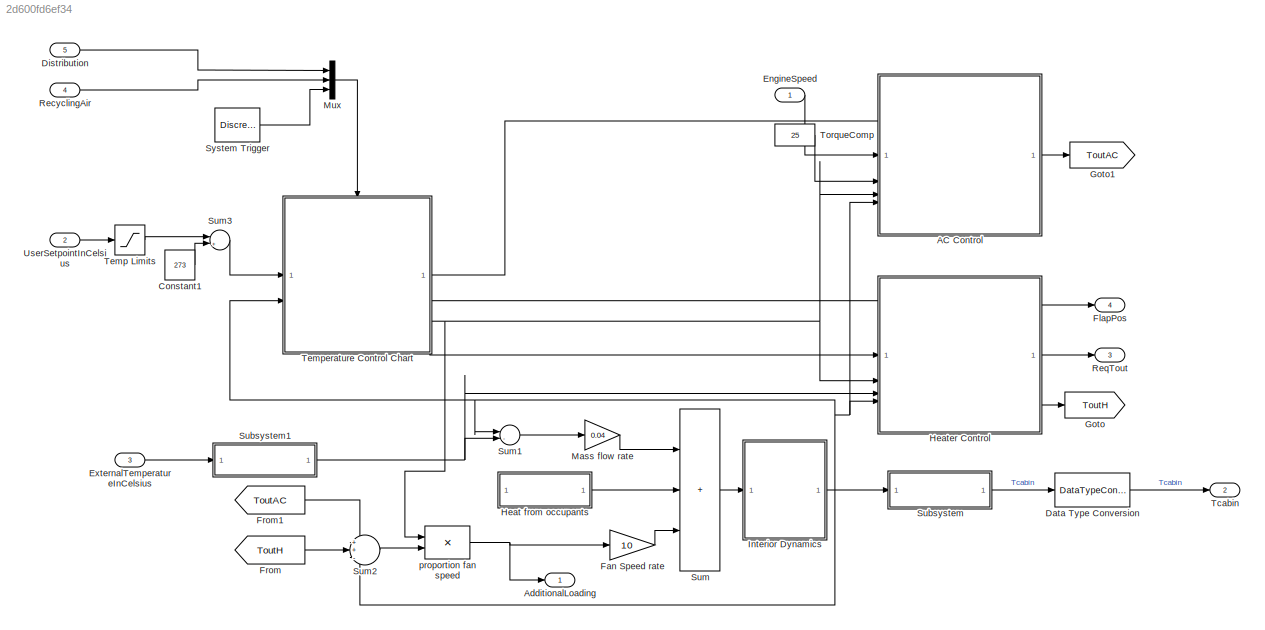
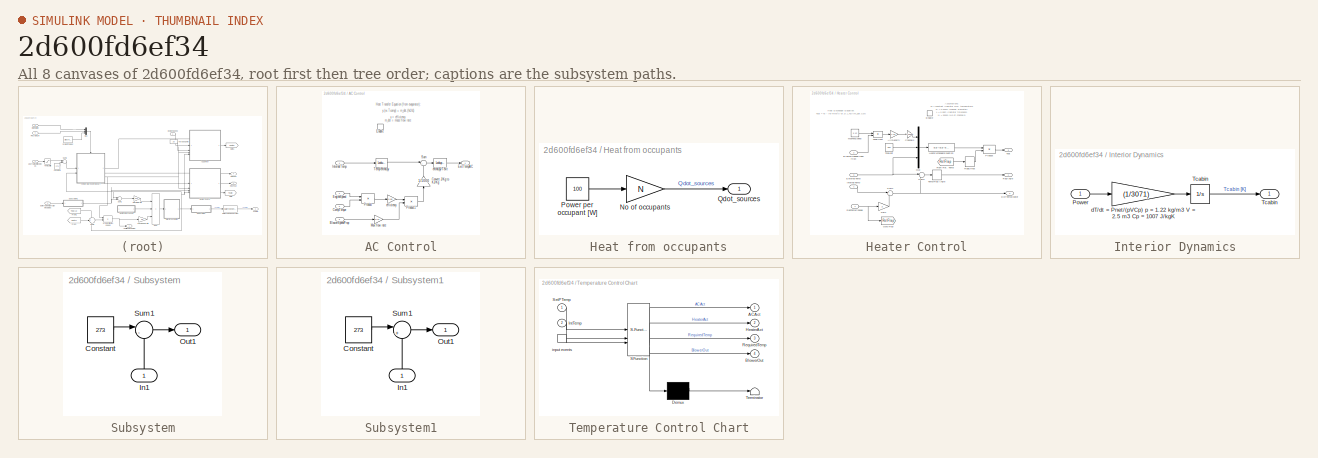
[diagram: thumbnail index - all 8 canvases of the model, root first then tree order]
MODEL slx_2d600fd6ef34
KIND model
CONFIG AbsTol = auto
CONFIG EnableMultiTasking = off
CONFIG FixedStep = auto
CONFIG MaxStep = auto
CONFIG MinStep = auto
CONFIG RelTol = 1e-3
CONFIG SampleTimeConstraint = Unconstrained
CONFIG SolverName = VariableStepAuto
CONFIG StartTime = 0.0
CONFIG StopTime = 10.0
BLOCK [SubSystem] AC Control
  TreatAsAtomicUnit = on
BLOCK [Inport] AC Control/BlowerSpeedProp
  Port = 3
BLOCK [Inport] AC Control/CompTorque
  Port = 2
BLOCK [Gain] AC Control/Convert J//Kg to KJ//Kg
  Gain = 1/1000
  NameLocation = left
BLOCK [EnablePort] AC Control/Enable
  PropagateVarSize = During execution
  StatesWhenEnabling = reset
  ZeroCross = off
BLOCK [Inport] AC Control/EngineSpeed
BLOCK [Outport] AC Control/ExitTempAC
  InitialOutput = 0
  OutputWhenDisabled = reset
  VectorParamsAs1DForOutWhenUnconnected = off
BLOCK [Inport] AC Control/InternalTemp
  Port = 4
BLOCK [Gain] AC Control/Max flow rate
  Gain = 0.12
  OutDataTypeStr = Inherit: Same as input
  ParamDataTypeStr = Inherit: Same as input
  SaturateOnIntegerOverflow = on
BLOCK [Product] AC Control/Product
  InputSameDT = on
  OutDataTypeStr = Inherit: Same as first input
  SaturateOnIntegerOverflow = on
BLOCK [Product] AC Control/Product1
  InputSameDT = on
  Inputs = */
  OutDataTypeStr = Inherit: Same as first input
  SaturateOnIntegerOverflow = on
BLOCK [Sum] AC Control/Sum
  InputSameDT = on
  Inputs = |+-
  OutDataTypeStr = Inherit: Same as first input
  SaturateOnIntegerOverflow = on
BLOCK [Lookup_n-D] AC Control/Temp//enthalpy
  BreakpointsForDimension1 = [220 230 240 250 260 270 280 285 290 295 300 305 310 315 320]
  InputPortMap = u0
  NumberOfTableDimensions = 1
  SaturateOnIntegerOverflow = on
  Table = [219.97 230.02 240.02 250.05 260.09 270.11 280.13 285.14 290.16 295.17 300.19 305.22 310.24 315.27 320.29]
BLOCK [Gain] AC Control/efficiency
  Gain = 0.86
  OutDataTypeStr = Inherit: Same as input
  ParamDataTypeStr = Inherit: Same as input
  SaturateOnIntegerOverflow = on
BLOCK [Lookup_n-D] AC Control/enthalpy//Texit
  BreakpointsForDimension1 = [219.97 230.02 240.02 250.05 260.09 270.11 280.13 285.14 290.16 295.17 300.19 305.22 310.24 315.27 320.29]
  InputPortMap = u0
  NumberOfTableDimensions = 1
  SaturateOnIntegerOverflow = on
  Table = [220 230 240 250 260 270 280 285 290 295 300 305 310 315 320]
BLOCK [Outport] AdditionalLoading
  VectorParamsAs1DForOutWhenUnconnected = off
BLOCK [Constant] Constant1
  Value = 273
BLOCK [DataTypeConversion] Data Type Conversion
  OutDataTypeStr = int16
  RndMeth = Floor
  SaturateOnIntegerOverflow = off
BLOCK [Inport] Distribution
  Port = 5
BLOCK [Inport] EngineSpeed
BLOCK [Inport] ExternalTemperatureInCelsius
  Port = 3
BLOCK [Gain] Fan Speed rate
  Gain = 10
  OutDataTypeStr = Inherit: Same as input
  ParamDataTypeStr = Inherit: Same as input
  SaturateOnIntegerOverflow = on
BLOCK [Outport] FlapPos
  Port = 4
  VectorParamsAs1DForOutWhenUnconnected = off
BLOCK [From] From
  CloseFcn = tagdialog Close
  GotoTag = ToutH
BLOCK [From] From1
  CloseFcn = tagdialog Close
  GotoTag = ToutAC
BLOCK [Goto] Goto
  GotoTag = ToutH
BLOCK [Goto] Goto1
  GotoTag = ToutAC
BLOCK [SubSystem] Heat from occupants
  AttributesFormatString = No. of occupants: %<N>
BLOCK [Gain] Heat from occupants/No of occupants
  Gain = N
  OutDataTypeStr = Inherit: Same as input
  ParamDataTypeStr = Inherit: Same as input
  SaturateOnIntegerOverflow = on
BLOCK [Constant] Heat from occupants/Power per occupant [W]
  Value = 100
BLOCK [Outport] Heat from occupants/Qdot_sources
  VectorParamsAs1DForOutWhenUnconnected = off
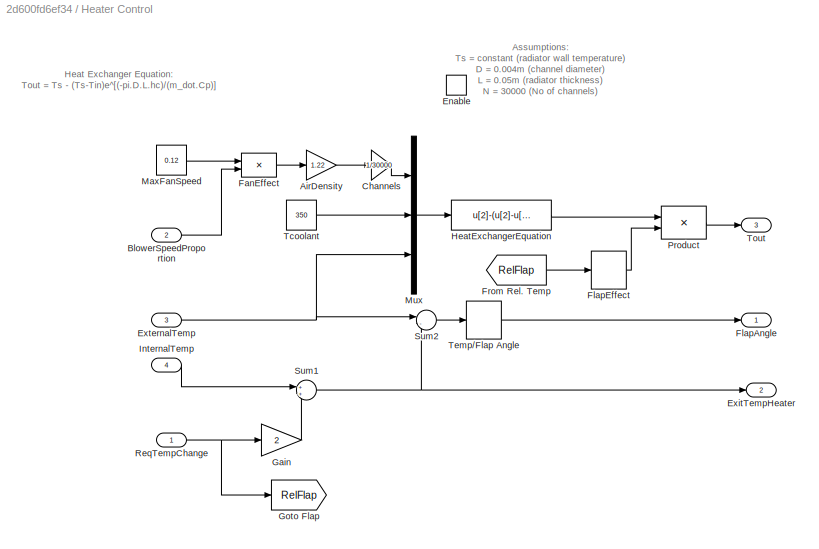
BLOCK [SubSystem] Heater Control
  TreatAsAtomicUnit = on
BLOCK [Gain] Heater Control/AirDensity
  Gain = 1.22
  OutDataTypeStr = Inherit: Same as input
  ParamDataTypeStr = Inherit: Same as input
  SaturateOnIntegerOverflow = on
BLOCK [Inport] Heater Control/BlowerSpeedProportion
  Port = 2
BLOCK [Gain] Heater Control/Channels
  Gain = 1/30000
  OutDataTypeStr = Inherit: Same as input
  ParamDataTypeStr = Inherit: Same as input
  SaturateOnIntegerOverflow = on
BLOCK [EnablePort] Heater Control/Enable
  PropagateVarSize = During execution
  StatesWhenEnabling = reset
  ZeroCross = off
BLOCK [Outport] Heater Control/ExitTempHeater
  InitialOutput = 0
  OutputWhenDisabled = reset
  Port = 2
  VectorParamsAs1DForOutWhenUnconnected = off
BLOCK [Inport] Heater Control/ExternalTemp
  Port = 3
BLOCK [Product] Heater Control/FanEffect
  InputSameDT = on
  OutDataTypeStr = Inherit: Same as first input
  SaturateOnIntegerOverflow = on
BLOCK [Outport] Heater Control/FlapAngle
  InitialOutput = 0
  OutputWhenDisabled = reset
  VectorParamsAs1DForOutWhenUnconnected = off
BLOCK [Lookup_n-D] Heater Control/FlapEffect
  BreakpointsForDimension1 = [0 3 5 10 50  90 100 200 ]
  InputPortMap = u0
  NumberOfTableDimensions = 1
  SaturateOnIntegerOverflow = on
  Table = [0 300 100  10 10  10 3 1]
BLOCK [From] Heater Control/From Rel. Temp
  CloseFcn = tagdialog Close
  GotoTag = RelFlap
BLOCK [Gain] Heater Control/Gain
  Gain = 2
  OutDataTypeStr = Inherit: Same as input
  ParamDataTypeStr = Inherit: Same as input
  SaturateOnIntegerOverflow = on
BLOCK [Goto] Heater Control/Goto Flap
  GotoTag = RelFlap
BLOCK [Fcn] Heater Control/HeatExchangerEquation
  Expr = u[2]-(u[2]-u[3])*exp(-(pi*0.004*0.05*23.8)/(u[1]*1007))
BLOCK [Inport] Heater Control/InternalTemp
  Port = 4
BLOCK [Constant] Heater Control/MaxFanSpeed
  Value = 0.12
BLOCK [Mux] Heater Control/Mux
  DisplayOption = bar
  Inputs = 3
BLOCK [Product] Heater Control/Product
  InputSameDT = on
  OutDataTypeStr = Inherit: Same as first input
  SaturateOnIntegerOverflow = on
BLOCK [Inport] Heater Control/ReqTempChange
BLOCK [Sum] Heater Control/Sum1
  InputSameDT = on
  OutDataTypeStr = Inherit: Same as first input
  SaturateOnIntegerOverflow = on
BLOCK [Sum] Heater Control/Sum2
  InputSameDT = on
  Inputs = |-+
  NameLocation = top
  OutDataTypeStr = Inherit: Same as first input
  SaturateOnIntegerOverflow = on
BLOCK [Constant] Heater Control/Tcoolant 
  Value = 350
BLOCK [Lookup_n-D] Heater Control/Temp//Flap Angle
  BreakpointsForDimension1 = [0 10 20 30 40 50 60 75 100 200]
  InputPortMap = u0
  NumberOfTableDimensions = 1
  SaturateOnIntegerOverflow = on
  Table = [0 20 30 45 60 75 90 90 90 90]
BLOCK [Outport] Heater Control/Tout
  InitialOutput = 0
  OutputWhenDisabled = reset
  Port = 3
  VectorParamsAs1DForOutWhenUnconnected = off
BLOCK [SubSystem] Interior Dynamics
BLOCK [Inport] Interior Dynamics/Power
BLOCK [Integrator] Interior Dynamics/Tcabin
  InitialCondition = 273+29
  ZeroCross = off
BLOCK [Outport] Interior Dynamics/Tcabin 
  VectorParamsAs1DForOutWhenUnconnected = off
BLOCK [Gain] Interior Dynamics/dT//dt = Pnet//(pVCp) p = 1.22 kg//m3 V = 2.5 m3 Cp = 1007 J//kgK
  Gain = (1/3071)
  OutDataTypeStr = Inherit: Same as input
  ParamDataTypeStr = Inherit: Same as input
  SaturateOnIntegerOverflow = on
BLOCK [Gain] Mass flow rate
  Gain = 0.04
  OutDataTypeStr = Inherit: Same as input
  ParamDataTypeStr = Inherit: Same as input
  SaturateOnIntegerOverflow = on
BLOCK [Mux] Mux
  DisplayOption = bar
  Inputs = 3
BLOCK [Inport] RecyclingAir
  Port = 4
BLOCK [Outport] ReqTout
  Port = 3
  VectorParamsAs1DForOutWhenUnconnected = off
BLOCK [SubSystem] Subsystem
  NameLocation = top
BLOCK [Constant] Subsystem/Constant
  Value = 273
BLOCK [Inport] Subsystem/In1
  NameLocation = right
BLOCK [Outport] Subsystem/Out1
  VectorParamsAs1DForOutWhenUnconnected = off
BLOCK [Sum] Subsystem/Sum1
  InputSameDT = on
  Inputs = |-+
  OutDataTypeStr = Inherit: Same as first input
  SaturateOnIntegerOverflow = on
BLOCK [SubSystem] Subsystem1
  NameLocation = top
BLOCK [Constant] Subsystem1/Constant
  Value = 273
BLOCK [Inport] Subsystem1/In1
  NameLocation = right
BLOCK [Outport] Subsystem1/Out1
  VectorParamsAs1DForOutWhenUnconnected = off
BLOCK [Sum] Subsystem1/Sum1
  InputSameDT = on
  Inputs = |++
  OutDataTypeStr = Inherit: Same as first input
  SaturateOnIntegerOverflow = on
BLOCK [Sum] Sum
  IconShape = rectangular
  InputSameDT = on
  Inputs = +++
  OutDataTypeStr = Inherit: Same as first input
  SaturateOnIntegerOverflow = on
BLOCK [Sum] Sum1
  InputSameDT = on
  Inputs = |-+
  OutDataTypeStr = Inherit: Same as first input
  SaturateOnIntegerOverflow = on
BLOCK [Sum] Sum2
  InputSameDT = on
  Inputs = ++-
  OutDataTypeStr = Inherit: Same as first input
  SaturateOnIntegerOverflow = on
BLOCK [Sum] Sum3
  InputSameDT = on
  Inputs = |++
  OutDataTypeStr = Inherit: Same as first input
  SaturateOnIntegerOverflow = on
BLOCK [DiscretePulseGenerator] System Trigger
BLOCK [Outport] Tcabin
  Port = 2
  VectorParamsAs1DForOutWhenUnconnected = off
BLOCK [Saturate] Temp Limits
  LowerLimit = -99
  UpperLimit = 100
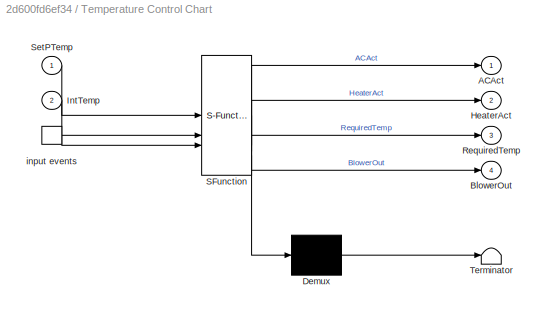
BLOCK [SubSystem] Temperature Control Chart
  ErrorFcn = Stateflow.Translate.translate
  PermitHierarchicalResolution = ExplicitOnly
  SFBlockType = Chart
  TreatAsAtomicUnit = on
BLOCK [Outport] Temperature Control Chart/ ACAct
  VectorParamsAs1DForOutWhenUnconnected = off
BLOCK [Demux] Temperature Control Chart/ Demux 
  Outputs = 1
BLOCK [Outport] Temperature Control Chart/ HeaterAct
  Port = 2
  VectorParamsAs1DForOutWhenUnconnected = off
BLOCK [S-Function] Temperature Control Chart/ SFunction 
  EnableBusSupport = off
  FunctionName = sf_sfun
  PortCounts = [3 5]
  SFcnIsStateOwnerBlock = off
  SFunctionDeploymentMode = off
  Tag = Stateflow S-Function 1
BLOCK [Terminator] Temperature Control Chart/ Terminator 
BLOCK [TriggerPort] Temperature Control Chart/ input events 
  ShowOutputPort = on
  TriggerType = either
  VariantControl = Variant
  ZeroCross = off
BLOCK [Outport] Temperature Control Chart/BlowerOut
  Port = 4
  VectorParamsAs1DForOutWhenUnconnected = off
BLOCK [Inport] Temperature Control Chart/IntTemp
  Port = 2
BLOCK [Outport] Temperature Control Chart/RequiredTemp
  Port = 3
  VectorParamsAs1DForOutWhenUnconnected = off
BLOCK [Inport] Temperature Control Chart/SetPTemp
BLOCK [Constant] TorqueComp
  Value = 25
BLOCK [Inport] UserSetpointInCelsius
  Port = 2
BLOCK [Product] proportion fan speed
  InputSameDT = on
  OutDataTypeStr = Inherit: Same as first input
  SaturateOnIntegerOverflow = on
ANNOTATION AC Control: Heat Transfer Equation (from evaporator): y.(w.Tcomp) = m_dot.(h4-h1) y = efficiency m_dot = mass flow rate w = speed of the engine Tcomp = compressor torque h4, h1 = enthalpy
ANNOTATION Heater Control: Assumptions: Ts = constant (radiator wall temperature) D = 0.004m (channel diameter) L = 0.05m (radiator thickness) N = 30000 (No of channels) k = 0.026 W/mK = constant (thermal conductivity of air) Cp = 1007 J/kgK = constant (specific heat of air) Laminar flow (hc = 3.66(k/D) = 23.8 W/m2K )
ANNOTATION Heater Control: Heat Exchanger Equation: Tout = Ts - (Ts-Tin)e^[(-pi.D.L.hc)/(m_dot.Cp)]
LINE AC Control/BlowerSpeedProp:1 -> AC Control/Max flow rate:1
LINE AC Control/CompTorque:1 -> AC Control/Product:2
LINE AC Control/Convert J//Kg to KJ//Kg:1 -> AC Control/Sum:2
LINE AC Control/EngineSpeed:1 -> AC Control/Product:1
LINE AC Control/InternalTemp:1 -> AC Control/Temp//enthalpy:1
LINE AC Control/Max flow rate:1 -> AC Control/Product1:2
LINE AC Control/Product1:1 -> AC Control/Convert J//Kg to KJ//Kg:1
LINE AC Control/Product:1 -> AC Control/efficiency:1
LINE AC Control/Sum:1 -> AC Control/enthalpy//Texit:1
LINE AC Control/Temp//enthalpy:1 -> AC Control/Sum:1
LINE AC Control/efficiency:1 -> AC Control/Product1:1
LINE AC Control/enthalpy//Texit:1 -> AC Control/ExitTempAC:1
LINE AC Control:1 -> Goto1:1
LINE Constant1:1 -> Sum3:2
LINE Data Type Conversion:1 -> Tcabin:1
LINE Distribution:1 -> Mux:1
LINE EngineSpeed:1 -> AC Control:1
LINE ExternalTemperatureInCelsius:1 -> Subsystem1:1
LINE Fan Speed rate:1 -> Sum:3
LINE From1:1 -> Sum2:1
LINE From:1 -> Sum2:2
LINE Heat from occupants/No of occupants:1 -> Heat from occupants/Qdot_sources:1
LINE Heat from occupants/Power per occupant [W]:1 -> Heat from occupants/No of occupants:1
LINE Heat from occupants:1 -> Sum:2
LINE Heater Control/AirDensity:1 -> Heater Control/Channels:1
LINE Heater Control/BlowerSpeedProportion:1 -> Heater Control/FanEffect:2
LINE Heater Control/Channels:1 -> Heater Control/Mux:1
NET Heater Control/ExternalTemp:1 -> Heater Control/Mux:3, Heater Control/Sum2:1
LINE Heater Control/FanEffect:1 -> Heater Control/AirDensity:1
LINE Heater Control/FlapEffect:1 -> Heater Control/Product:2
LINE Heater Control/From Rel. Temp:1 -> Heater Control/FlapEffect:1
LINE Heater Control/Gain:1 -> Heater Control/Sum1:2
LINE Heater Control/HeatExchangerEquation:1 -> Heater Control/Product:1
LINE Heater Control/InternalTemp:1 -> Heater Control/Sum1:1
LINE Heater Control/MaxFanSpeed:1 -> Heater Control/FanEffect:1
LINE Heater Control/Mux:1 -> Heater Control/HeatExchangerEquation:1
LINE Heater Control/Product:1 -> Heater Control/Tout:1
NET Heater Control/ReqTempChange:1 -> Heater Control/Gain:1, Heater Control/Goto Flap:1
NET Heater Control/Sum1:1 -> Heater Control/ExitTempHeater:1, Heater Control/Sum2:2
LINE Heater Control/Sum2:1 -> Heater Control/Temp//Flap Angle:1
LINE Heater Control/Tcoolant :1 -> Heater Control/Mux:2
LINE Heater Control/Temp//Flap Angle:1 -> Heater Control/FlapAngle:1
LINE Heater Control:1 -> FlapPos:1
LINE Heater Control:2 -> ReqTout:1
LINE Heater Control:3 -> Goto:1
LINE Interior Dynamics/Power:1 -> Interior Dynamics/dT//dt = Pnet//(pVCp) p = 1.22 kg//m3 V = 2.5 m3 Cp = 1007 J//kgK:1
LINE Interior Dynamics/Tcabin:1 -> Interior Dynamics/Tcabin :1
LINE Interior Dynamics/dT//dt = Pnet//(pVCp) p = 1.22 kg//m3 V = 2.5 m3 Cp = 1007 J//kgK:1 -> Interior Dynamics/Tcabin:1
NET Interior Dynamics:1 -> AC Control:4, Heater Control:4, Subsystem:1, Sum1:1, Sum2:3, Temperature Control Chart:2
LINE Mass flow rate:1 -> Sum:1
LINE Mux:1 -> Temperature Control Chart:trigger
LINE RecyclingAir:1 -> Mux:2
LINE Subsystem/Constant:1 -> Subsystem/Sum1:1
LINE Subsystem/In1:1 -> Subsystem/Sum1:2
LINE Subsystem/Sum1:1 -> Subsystem/Out1:1
LINE Subsystem1/Constant:1 -> Subsystem1/Sum1:1
LINE Subsystem1/In1:1 -> Subsystem1/Sum1:2
LINE Subsystem1/Sum1:1 -> Subsystem1/Out1:1
NET Subsystem1:1 -> Heater Control:3, Sum1:2
LINE Subsystem:1 -> Data Type Conversion:1
LINE Sum1:1 -> Mass flow rate:1
LINE Sum2:1 -> proportion fan speed:2
LINE Sum3:1 -> Temperature Control Chart:1
LINE Sum:1 -> Interior Dynamics:1
LINE System Trigger:1 -> Mux:3
LINE Temp Limits:1 -> Sum3:1
LINE Temperature Control Chart:1 -> AC Control:enable
LINE Temperature Control Chart:2 -> Heater Control:enable
LINE Temperature Control Chart:3 -> Heater Control:1
NET Temperature Control Chart:4 -> AC Control:3, Heater Control:2, proportion fan speed:1
LINE TorqueComp:1 -> AC Control:2
LINE UserSetpointInCelsius:1 -> Temp Limits:1
NET proportion fan speed:1 -> AdditionalLoading:1, Fan Speed rate:1
note: NET lines group one-source signal fan-out (src -> all destinations, sorted); 1:1 wires keep LINE
CHART Temperature Control Chart states=21 transitions=26
  STATE_LABEL 'Blower\nduring:setpoint_calc();'
  STATE_LABEL 'Blower_off\nentry:BlowerOut=0.0;'
  STATE_LABEL 'Blower_on'
  STATE_LABEL 'Blower_1\nentry:BlowerOut=0.2;'
  STATE_LABEL 'Blower_2\nentry:BlowerOut=0.4;'
  STATE_LABEL 'Blower_3\nentry:BlowerOut=0.6;'
  STATE_LABEL 'Blower_4\nentry:BlowerOut=0.8;'
  STATE_LABEL 'Blower_5\nentry:BlowerOut=1.0;'
  STATE_LABEL 'E[~in(Blower_1) && in_temp_range(1.5,5)]'
  STATE_LABEL 'E[~in(Blower_2) && in_temp_range(7,10)]'
  STATE_LABEL 'E[~in(Blower_3) && in_temp_range(12,15)]'
  STATE_LABEL 'E[~in(Blower_4) && in_temp_range(17,20)]'
  STATE_LABEL 'E[~in(Blower_5) && in_temp_range(22,200)]'
  STATE_LABEL 'setpoint_calc()'
  STATE_LABEL '{RequiredTemp = SetPTemp-IntTemp;}'
  STATE_LABEL '[RequiredTemp<0.0]\n{absTempDiff = -RequiredTemp;}'
  STATE_LABEL '{absTempDiff = RequiredTemp;}'
  STATE_LABEL 'b = in_temp_range(minTemp,maxTemp)'
  STATE_LABEL '{b = (absTempDiff>minTemp) &&  ...\n        (absTempDiff<maxTemp);}'
  STATE_LABEL 'E[in_temp_range(.5,203)]'
  STATE_LABEL 'E[absTempDiff>203 || absTempDiff<=0.5]'
  STATE_LABEL 'Blower_off\nentry:BlowerOut=0.0;'
  STATE_LABEL 'Blower_on'
  STATE_LABEL 'Blower_1\nentry:BlowerOut=0.2;'
  STATE_LABEL 'Blower_2\nentry:BlowerOut=0.4;'
  STATE_LABEL 'Blower_3\nentry:BlowerOut=0.6;'
  STATE_LABEL 'Blower_4\nentry:BlowerOut=0.8;'
  STATE_LABEL 'Blower_5\nentry:BlowerOut=1.0;'
  STATE_LABEL 'E[~in(Blower_1) && in_temp_range(1.5,5)]'
  STATE_LABEL 'E[~in(Blower_2) && in_temp_range(7,10)]'
  STATE_LABEL 'E[~in(Blower_3) && in_temp_range(12,15)]'
  STATE_LABEL 'E[~in(Blower_4) && in_temp_range(17,20)]'
  STATE_LABEL 'E[~in(Blower_5) && in_temp_range(22,200)]'
  STATE_LABEL 'Blower_1\nentry:BlowerOut=0.2;'
  STATE_LABEL 'Blower_2\nentry:BlowerOut=0.4;'
  STATE_LABEL 'Blower_3\nentry:BlowerOut=0.6;'
  STATE_LABEL 'Blower_4\nentry:BlowerOut=0.8;'
  STATE_LABEL 'Blower_5\nentry:BlowerOut=1.0;'
  STATE_LABEL 'setpoint_calc()'
  STATE_LABEL '{RequiredTemp = SetPTemp-IntTemp;}'
CHART  states=0 transitions=0
